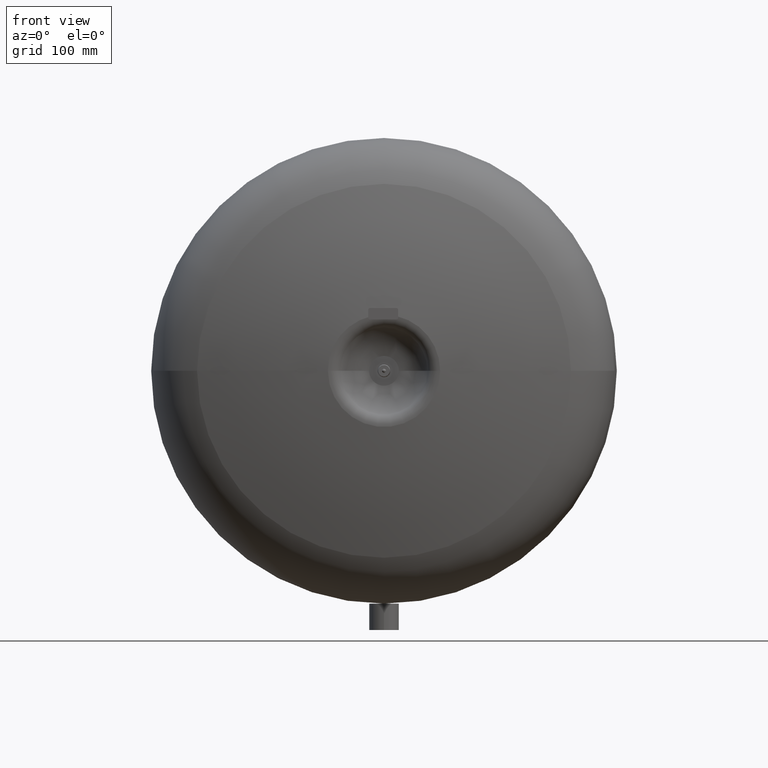
[diagram: clean part render]
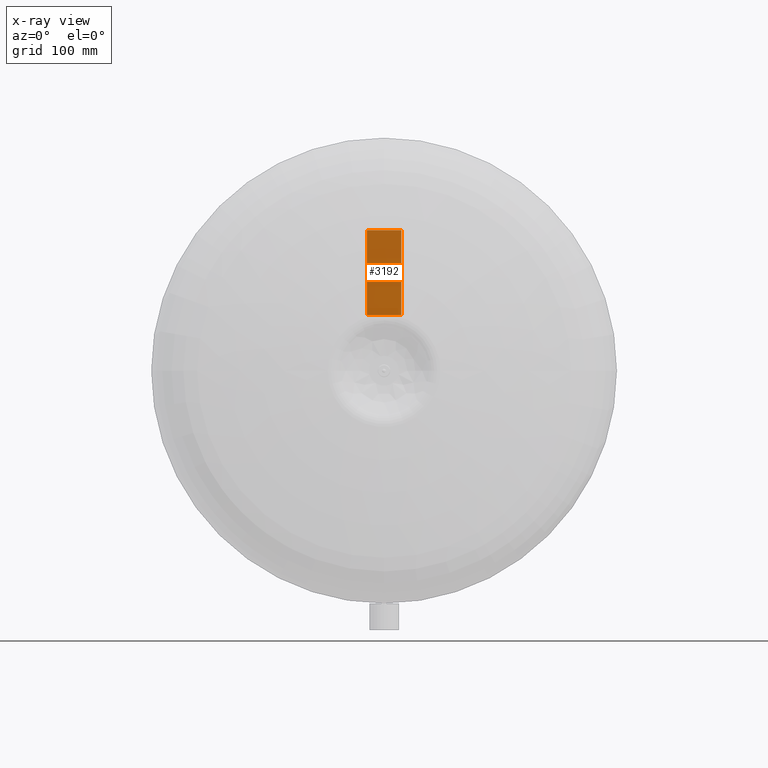
[diagram: x-ray — body ghosted, one internal face saturated and labeled with its STEP entity id]
A machine part, front view, then the same camera in x-ray: the body is ghosted and one INTERNAL B-rep face — a face not visible from any outside direction — is saturated and labeled: STEP entity #3192.
In plain terms, the highlighted cylindrical surface (partial cylindrical patch) has radius 511.62 mm, axis along (-1, 0, 0).
Its self-contained STEP definition (entity closure, byte-faithful):
#2499=CARTESIAN_POINT('',(15.000000000000014,80.419376258443563,348.60501132869831));
#2500=VERTEX_POINT('',#2499);
#2508=CARTESIAN_POINT('',(15.000000000000011,92.099999999990715,274.60276424259791));
#2509=VERTEX_POINT('',#2508);
#2510=CARTESIAN_POINT('',(14.999999999999915,-417.74717671773067,232.05070145355666));
#2511=DIRECTION('',(1.0,-1.877399E-016,-4.392485E-017));
#2512=DIRECTION('',(-1.928099E-016,-0.973704596979407,-0.227814305567431));
#2513=AXIS2_PLACEMENT_3D('',#2510,#2511,#2512);
#2514=CIRCLE('',#2513,511.61980185938262);
#2515=EDGE_CURVE('',#2509,#2500,#2514,.T.);
#2592=CARTESIAN_POINT('',(-14.999999999999988,92.099999999990715,274.60276424259791));
#2593=VERTEX_POINT('',#2592);
#2600=CARTESIAN_POINT('',(-14.999999999999988,80.419376258443563,348.60501132869831));
#2601=VERTEX_POINT('',#2600);
#2602=CARTESIAN_POINT('',(-15.000000000000083,-417.74717671773067,232.05070145355666));
#2603=DIRECTION('',(-1.0,1.877399E-016,4.392485E-017));
#2604=DIRECTION('',(-1.928099E-016,-0.973704596979407,-0.227814305567431));
#2605=AXIS2_PLACEMENT_3D('',#2602,#2603,#2604);
#2606=CIRCLE('',#2605,511.61980185938262);
#2607=EDGE_CURVE('',#2601,#2593,#2606,.T.);
#2994=CARTESIAN_POINT('',(15.000000000000011,92.099999999990715,274.60276424259791));
#2995=DIRECTION('',(-1.0,0.0,0.0));
#2996=VECTOR('',#2995,30.0);
#2997=LINE('',#2994,#2996);
#2998=EDGE_CURVE('',#2509,#2593,#2997,.T.);
#3170=CARTESIAN_POINT('',(15.000000000000014,80.419376258443563,348.60501132869831));
#3171=DIRECTION('',(-1.0,0.0,0.0));
#3172=VECTOR('',#3171,30.0);
#3173=LINE('',#3170,#3172);
#3174=EDGE_CURVE('',#2500,#2601,#3173,.T.);
#3181=CARTESIAN_POINT('',(14.999999999999915,-417.74717671773067,232.05070145355666));
#3182=DIRECTION('',(-1.0,1.836910E-016,6.123032E-017));
#3183=DIRECTION('',(-1.928099E-016,-0.973704596979407,-0.227814305567431));
#3184=AXIS2_PLACEMENT_3D('',#3181,#3182,#3183);
#3185=CYLINDRICAL_SURFACE('',#3184,511.61980185938268);
#3186=ORIENTED_EDGE('',*,*,#2607,.T.);
#3187=ORIENTED_EDGE('',*,*,#2998,.F.);
#3188=ORIENTED_EDGE('',*,*,#2515,.T.);
#3189=ORIENTED_EDGE('',*,*,#3174,.T.);
#3190=EDGE_LOOP('',(#3186,#3187,#3188,#3189));
#3191=FACE_OUTER_BOUND('',#3190,.T.);
#3192=ADVANCED_FACE('',(#3191),#3185,.F.);